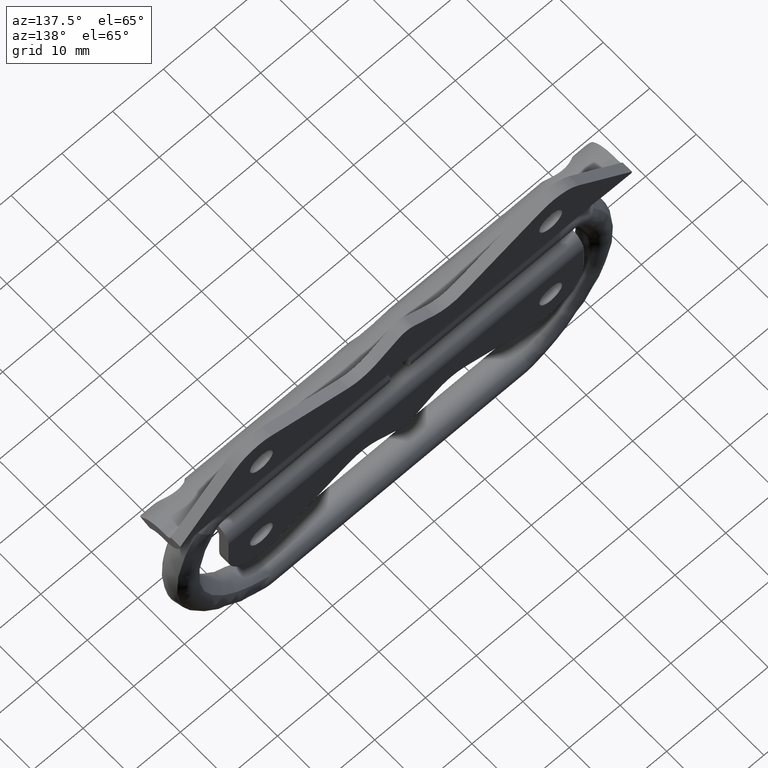
[diagram: clean part render]
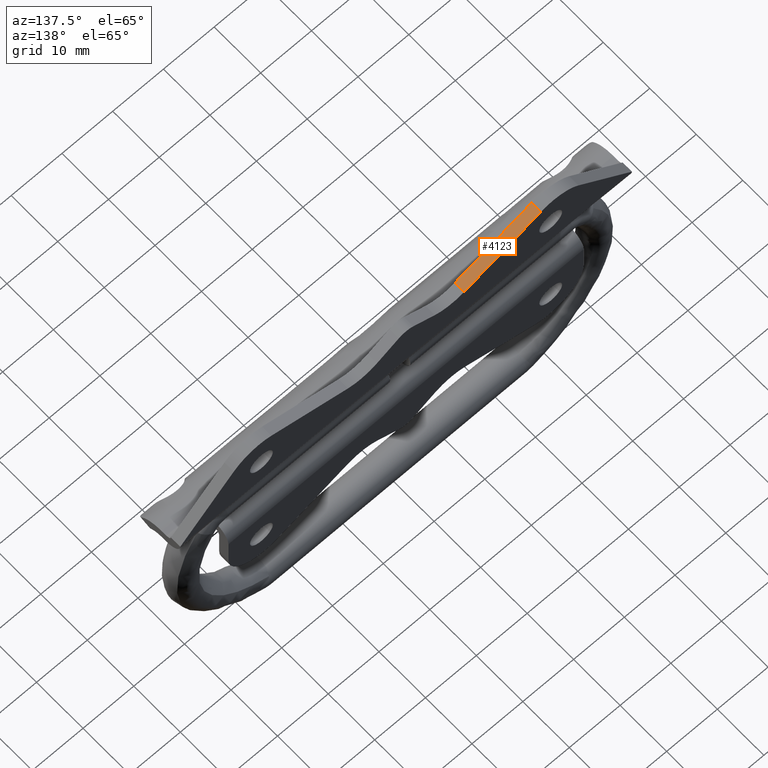
[diagram: same view with one face highlighted and labeled with its STEP entity id]
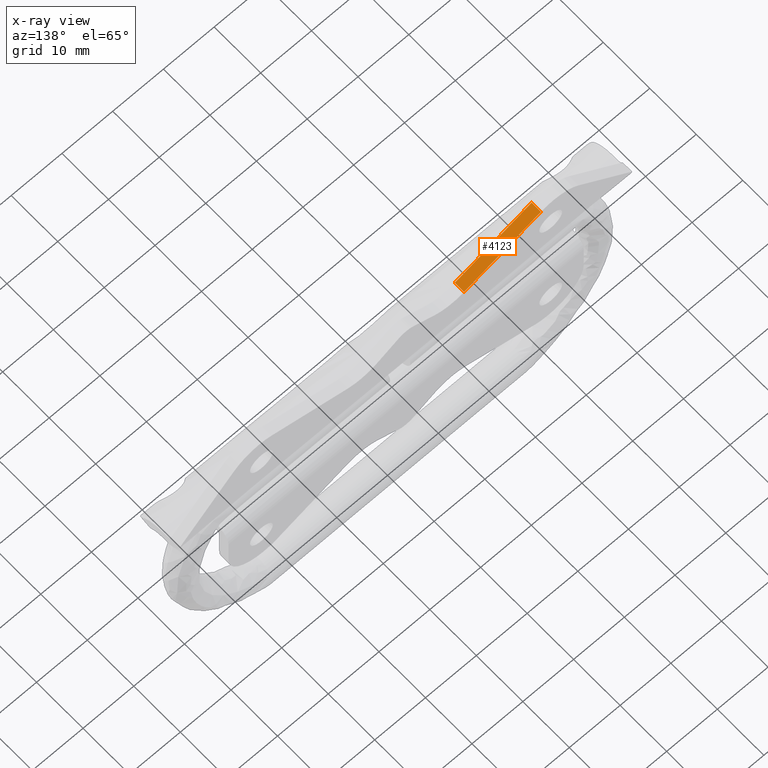
[diagram: x-ray of the same camera — body ghosted, the highlighted face saturated]
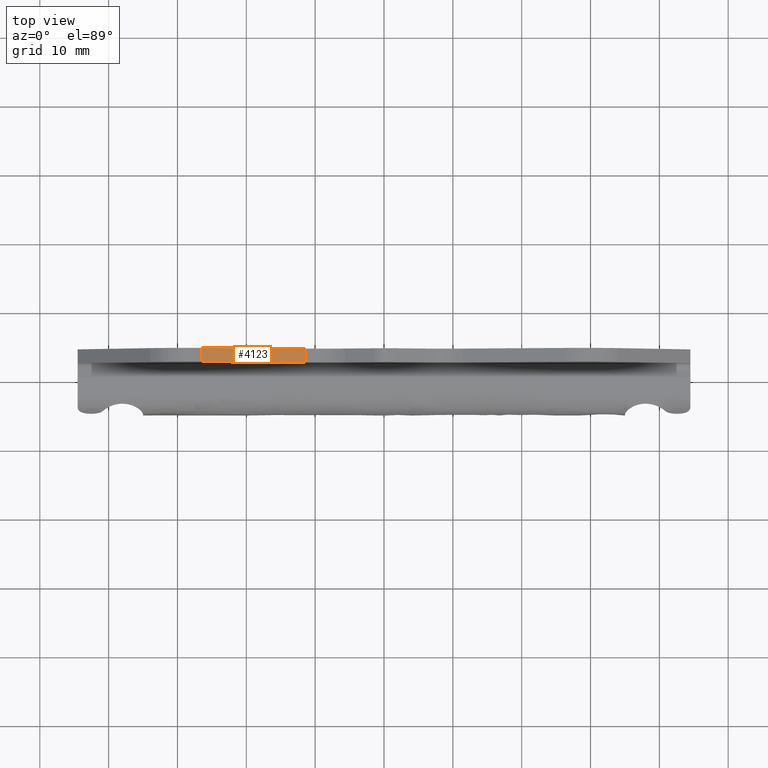
[diagram: same view with one face highlighted and labeled with its STEP entity id]
A machine part, auxiliary view. The second image highlights one B-rep face of the part: STEP entity #4123.
The next image is the same camera in x-ray: the body ghosted, the highlighted face saturated — about 0% of this face is hidden behind the body in this view.
A second angle (top view) of the same face is appended — the face is thin or edge-on in the first view.
In plain terms, the highlighted face is a freeform B-spline surface patch.
Its self-contained STEP definition (entity closure, byte-faithful):
#3775=CARTESIAN_POINT('',(-11.440199442288840,4.0,12.939074152804020));
#3776=VERTEX_POINT('',#3775);
#3789=CARTESIAN_POINT('',(-11.440199442288840,2.0,12.939074152804020));
#3790=VERTEX_POINT('',#3789);
#3791=CARTESIAN_POINT('',(-11.440199442288840,2.0,12.939074152804020));
#3792=CARTESIAN_POINT('',(-11.440199442288840,4.0,12.939074152804020));
#3793=QUASI_UNIFORM_CURVE('',1,(#3791,#3792),.UNSPECIFIED.,.F.,.U.);
#3794=EDGE_CURVE('',#3790,#3776,#3793,.T.);
#4059=CARTESIAN_POINT('',(-26.561169602819749,4.0,18.561063058465301));
#4060=VERTEX_POINT('',#4059);
#4082=CARTESIAN_POINT('',(-26.561169602819749,2.0,18.561063058465301));
#4083=VERTEX_POINT('',#4082);
#4096=CARTESIAN_POINT('',(-26.561169602819749,2.0,18.561063058465301));
#4097=CARTESIAN_POINT('',(-26.561169602819749,4.0,18.561063058465301));
#4098=QUASI_UNIFORM_CURVE('',1,(#4096,#4097),.UNSPECIFIED.,.F.,.U.);
#4099=EDGE_CURVE('',#4083,#4060,#4098,.T.);
#4104=CARTESIAN_POINT('',(-10.684907491934970,1.900100003876388,12.658255996274059));
#4105=CARTESIAN_POINT('',(-27.316461282789611,1.900100003876388,18.841881114466279));
#4106=CARTESIAN_POINT('',(-10.684907491934970,4.099900049767792,12.658255996274059));
#4107=CARTESIAN_POINT('',(-27.316461282789600,4.099900049767792,18.841881114466279));
#4108=B_SPLINE_SURFACE_WITH_KNOTS('',1,1,((#4104,#4106),(#4105,#4107)),.UNSPECIFIED.,.F.,.F.,.U.,(2,2),(2,2),(0.0,17.743894755673821),(0.0,2.199800045891404),.UNSPECIFIED.);
#4109=CARTESIAN_POINT('',(-11.440199442288840,4.0,12.939074152804020));
#4110=CARTESIAN_POINT('',(-26.561169602819749,4.0,18.561063058465301));
#4111=QUASI_UNIFORM_CURVE('',1,(#4109,#4110),.UNSPECIFIED.,.F.,.U.);
#4112=EDGE_CURVE('',#3776,#4060,#4111,.T.);
#4113=ORIENTED_EDGE('',*,*,#4112,.T.);
#4114=ORIENTED_EDGE('',*,*,#4099,.F.);
#4115=CARTESIAN_POINT('',(-11.440199442288840,2.0,12.939074152804020));
#4116=CARTESIAN_POINT('',(-26.561169602819749,2.0,18.561063058465301));
#4117=QUASI_UNIFORM_CURVE('',1,(#4115,#4116),.UNSPECIFIED.,.F.,.U.);
#4118=EDGE_CURVE('',#3790,#4083,#4117,.T.);
#4119=ORIENTED_EDGE('',*,*,#4118,.F.);
#4120=ORIENTED_EDGE('',*,*,#3794,.T.);
#4121=EDGE_LOOP('',(#4113,#4114,#4119,#4120));
#4122=FACE_OUTER_BOUND('',#4121,.T.);
#4123=ADVANCED_FACE('',(#4122),#4108,.F.);